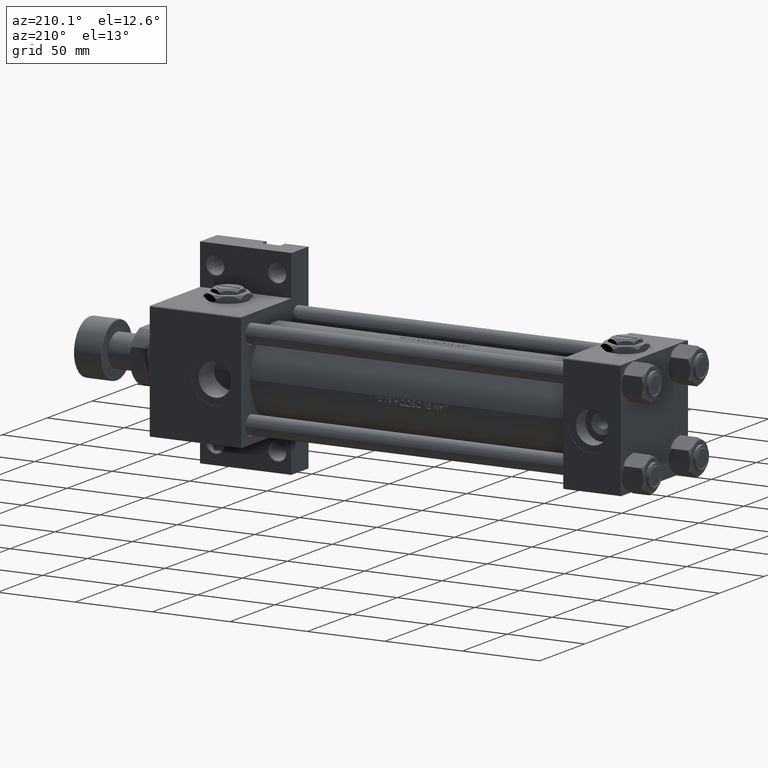
[diagram: clean part render]
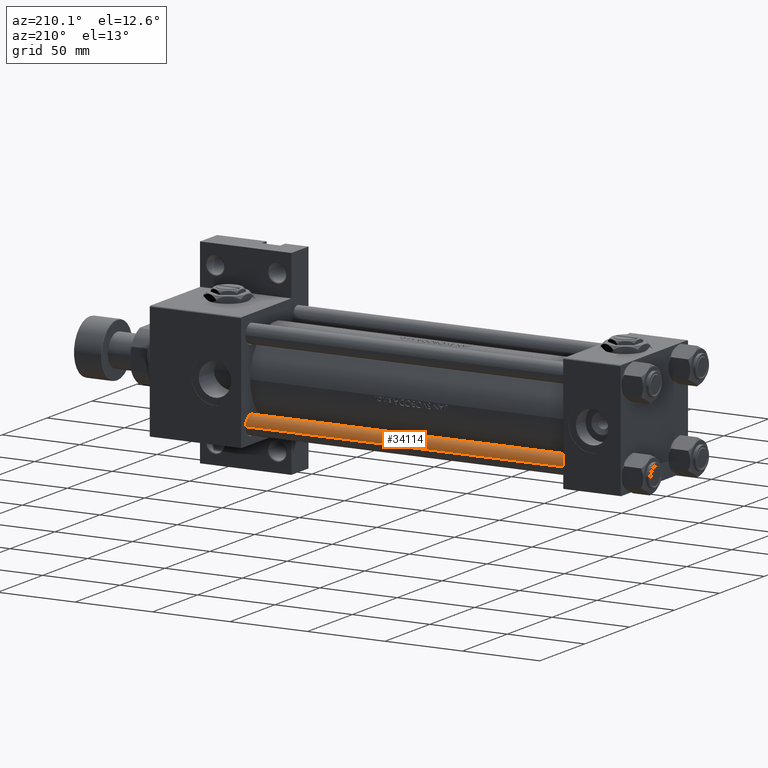
[diagram: same view with one face highlighted and labeled with its STEP entity id]
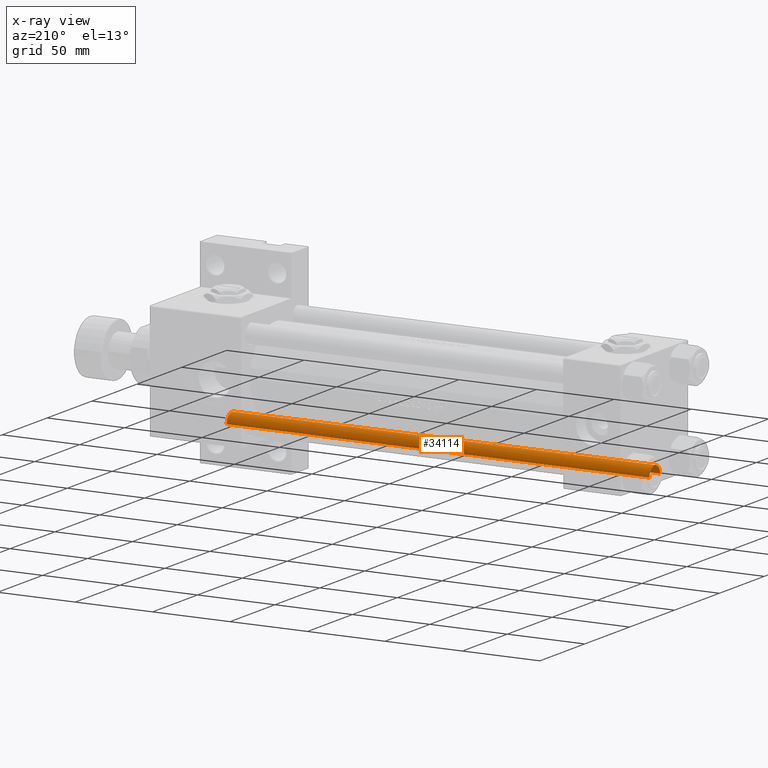
[diagram: x-ray of the same camera — body ghosted, the highlighted face saturated]
A machine part, auxiliary view. The second image highlights one B-rep face of the part: STEP entity #34114.
The next image is the same camera in x-ray: the body ghosted, the highlighted face saturated — about 0% of this face is hidden behind the body in this view.
In plain terms, the highlighted cylindrical surface (edge-blend (fillet) strip) has radius 6 mm, axis along (-1, -0, 0).
Its self-contained STEP definition (entity closure, byte-faithful):
#1371 = DIRECTION ( 'NONE',  ( 1.000000000000000000, 0.000000000000000000, 0.000000000000000000 ) ) ;
#1418 = CARTESIAN_POINT ( 'NONE',  ( 0.000000000000000000, 0.000000000000000000, 274.0000000000000000 ) ) ;
#1778 = LINE ( 'NONE', #31966, #25385 ) ;
#7027 = VERTEX_POINT ( 'NONE', #22223 ) ;
#7271 = EDGE_CURVE ( 'NONE', #7027, #23602, #42220, .T. ) ;
#8647 = DIRECTION ( 'NONE',  ( -0.000000000000000000, -0.000000000000000000, -1.000000000000000000 ) ) ;
#10821 = LINE ( 'NONE', #36934, #30274 ) ;
#11037 = EDGE_CURVE ( 'NONE', #28335, #23602, #1778, .T. ) ;
#13264 = ORIENTED_EDGE ( 'NONE', *, *, #7271, .T. ) ;
#17811 = AXIS2_PLACEMENT_3D ( 'NONE', #1418, #36912, #47807 ) ;
#18952 = AXIS2_PLACEMENT_3D ( 'NONE', #34736, #39031, #22826 ) ;
#20255 = ORIENTED_EDGE ( 'NONE', *, *, #11037, .F. ) ;
#20953 = FACE_OUTER_BOUND ( 'NONE', #22706, .T. ) ;
#21274 = CARTESIAN_POINT ( 'NONE',  ( 6.000000000000000888, 7.347880794884120722E-16, 273.5000000000000000 ) ) ;
#21408 = CARTESIAN_POINT ( 'NONE',  ( 0.000000000000000000, 0.000000000000000000, 0.5000000000000559552 ) ) ;
#22223 = CARTESIAN_POINT ( 'NONE',  ( 6.000000000000000888, 7.347880794884120722E-16, 0.5000000000000559552 ) ) ;
#22706 = EDGE_LOOP ( 'NONE', ( #36326, #46505, #13264, #20255 ) ) ;
#22826 = DIRECTION ( 'NONE',  ( 1.000000000000000000, 0.000000000000000000, 0.000000000000000000 ) ) ;
#23602 = VERTEX_POINT ( 'NONE', #41802 ) ;
#23913 = EDGE_CURVE ( 'NONE', #36018, #7027, #10821, .T. ) ;
#25385 = VECTOR ( 'NONE', #8647, 1000.000000000000000 ) ;
#25527 = DIRECTION ( 'NONE',  ( -0.000000000000000000, -0.000000000000000000, -1.000000000000000000 ) ) ;
#28335 = VERTEX_POINT ( 'NONE', #43448 ) ;
#28549 = CYLINDRICAL_SURFACE ( 'NONE', #17811, 6.000000000000000888 ) ;
#30274 = VECTOR ( 'NONE', #25527, 1000.000000000000000 ) ;
#31966 = CARTESIAN_POINT ( 'NONE',  ( -6.000000000000000888, 0.000000000000000000, 274.0000000000000000 ) ) ;
#33317 = AXIS2_PLACEMENT_3D ( 'NONE', #21408, #48011, #1371 ) ;
#34114 = ADVANCED_FACE ( 'NONE', ( #20953 ), #28549, .T. ) ;
#34736 = CARTESIAN_POINT ( 'NONE',  ( 0.000000000000000000, 0.000000000000000000, 273.5000000000000000 ) ) ;
#36018 = VERTEX_POINT ( 'NONE', #21274 ) ;
#36326 = ORIENTED_EDGE ( 'NONE', *, *, #39051, .T. ) ;
#36912 = DIRECTION ( 'NONE',  ( -0.000000000000000000, -0.000000000000000000, -1.000000000000000000 ) ) ;
#36934 = CARTESIAN_POINT ( 'NONE',  ( 6.000000000000000888, 7.347880794884120722E-16, 274.0000000000000000 ) ) ;
#39031 = DIRECTION ( 'NONE',  ( 0.000000000000000000, 0.000000000000000000, -1.000000000000000000 ) ) ;
#39051 = EDGE_CURVE ( 'NONE', #28335, #36018, #45626, .T. ) ;
#41802 = CARTESIAN_POINT ( 'NONE',  ( -6.000000000000000888, 0.000000000000000000, 0.5000000000000559552 ) ) ;
#42220 = CIRCLE ( 'NONE', #33317, 6.000000000000000888 ) ;
#43448 = CARTESIAN_POINT ( 'NONE',  ( -6.000000000000000888, 0.000000000000000000, 273.5000000000000000 ) ) ;
#45626 = CIRCLE ( 'NONE', #18952, 6.000000000000000888 ) ;
#46505 = ORIENTED_EDGE ( 'NONE', *, *, #23913, .T. ) ;
#47807 = DIRECTION ( 'NONE',  ( -1.000000000000000000, 0.000000000000000000, 0.000000000000000000 ) ) ;
#48011 = DIRECTION ( 'NONE',  ( -0.000000000000000000, -0.000000000000000000, 1.000000000000000000 ) ) ;